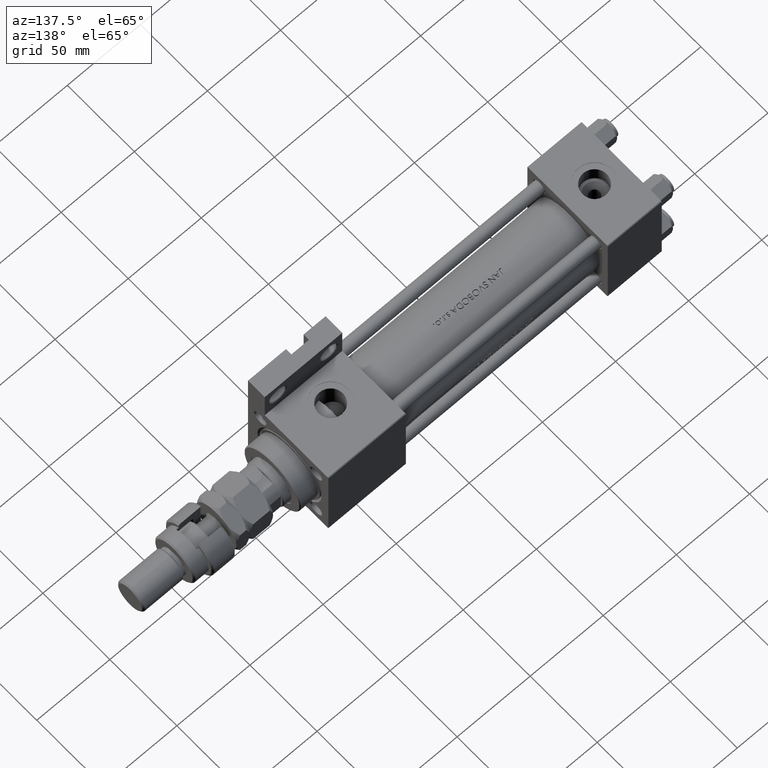
[diagram: clean part render]
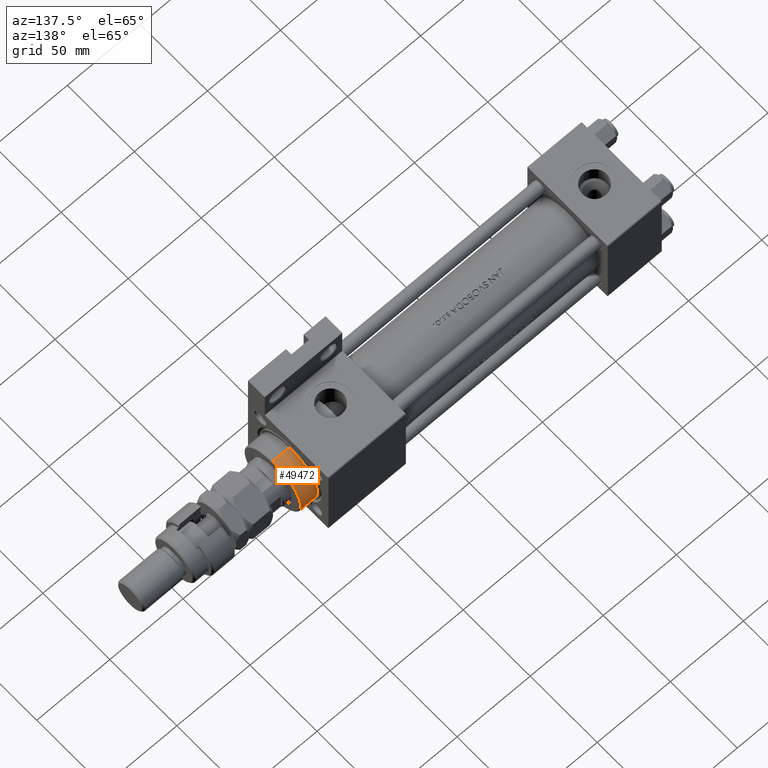
[diagram: same view with one face highlighted and labeled with its STEP entity id]
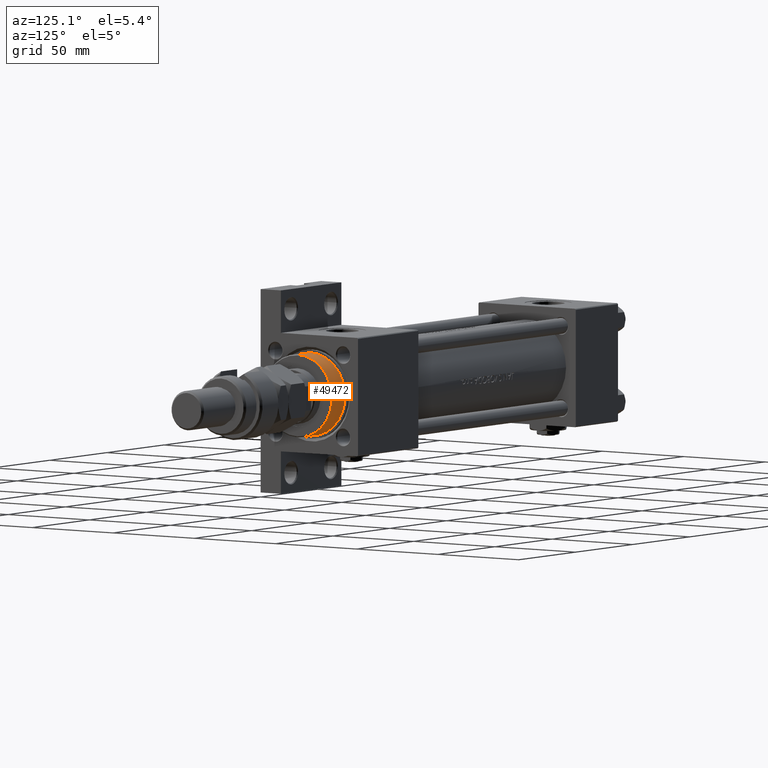
[diagram: same view with one face highlighted and labeled with its STEP entity id]
A machine part, auxiliary view. The second image highlights one B-rep face of the part: STEP entity #49472.
A second angle (auxiliary view) of the same face is appended — the face is thin or edge-on in the first view.
In plain terms, the highlighted cylindrical surface (partial cylindrical patch) has radius 21 mm, axis along (-1, 0, 0).
Its self-contained STEP definition (entity closure, byte-faithful):
#1330 = DIRECTION ( 'NONE',  ( -0.000000000000000000, -0.000000000000000000, -1.000000000000000000 ) ) ;
#1823 = ORIENTED_EDGE ( 'NONE', *, *, #12613, .T. ) ;
#1946 = ORIENTED_EDGE ( 'NONE', *, *, #34541, .T. ) ;
#2370 = VERTEX_POINT ( 'NONE', #36692 ) ;
#2956 = EDGE_CURVE ( 'NONE', #11734, #39181, #16467, .T. ) ;
#5050 = CARTESIAN_POINT ( 'NONE',  ( 21.00000000000000000, 2.571758278209441661E-15, 40.70000000000000284 ) ) ;
#7249 = DIRECTION ( 'NONE',  ( 1.000000000000000000, 0.000000000000000000, 0.000000000000000000 ) ) ;
#9389 = VECTOR ( 'NONE', #1330, 1000.000000000000000 ) ;
#9483 = CARTESIAN_POINT ( 'NONE',  ( -21.00000000000000000, 0.000000000000000000, 40.70000000000000284 ) ) ;
#11734 = VERTEX_POINT ( 'NONE', #15207 ) ;
#11977 = DIRECTION ( 'NONE',  ( -0.000000000000000000, -0.000000000000000000, -1.000000000000000000 ) ) ;
#12613 = EDGE_CURVE ( 'NONE', #49956, #2370, #34438, .T. ) ;
#12764 = CARTESIAN_POINT ( 'NONE',  ( 0.000000000000000000, 0.000000000000000000, 40.70000000000000284 ) ) ;
#15207 = CARTESIAN_POINT ( 'NONE',  ( 21.00000000000000000, 2.571758278209441661E-15, 40.19999999999998863 ) ) ;
#16049 = CYLINDRICAL_SURFACE ( 'NONE', #40047, 21.00000000000000000 ) ;
#16443 = CARTESIAN_POINT ( 'NONE',  ( 0.000000000000000000, 0.000000000000000000, 28.69999999999999929 ) ) ;
#16467 = LINE ( 'NONE', #5050, #19348 ) ;
#17249 = DIRECTION ( 'NONE',  ( -0.000000000000000000, -0.000000000000000000, -1.000000000000000000 ) ) ;
#17827 = CIRCLE ( 'NONE', #23056, 21.00000000000000000 ) ;
#19348 = VECTOR ( 'NONE', #17249, 1000.000000000000000 ) ;
#21171 = DIRECTION ( 'NONE',  ( -1.000000000000000000, 0.000000000000000000, 0.000000000000000000 ) ) ;
#23056 = AXIS2_PLACEMENT_3D ( 'NONE', #27864, #44400, #7249 ) ;
#23805 = DIRECTION ( 'NONE',  ( 1.000000000000000000, 0.000000000000000000, 0.000000000000000000 ) ) ;
#27864 = CARTESIAN_POINT ( 'NONE',  ( 0.000000000000000000, 0.000000000000000000, 40.19999999999998863 ) ) ;
#28813 = ORIENTED_EDGE ( 'NONE', *, *, #32139, .T. ) ;
#32139 = EDGE_CURVE ( 'NONE', #11734, #49956, #17827, .T. ) ;
#34438 = LINE ( 'NONE', #9483, #9389 ) ;
#34541 = EDGE_CURVE ( 'NONE', #2370, #39181, #49965, .T. ) ;
#36692 = CARTESIAN_POINT ( 'NONE',  ( -21.00000000000000000, 0.000000000000000000, 28.69999999999999929 ) ) ;
#36805 = DIRECTION ( 'NONE',  ( 0.000000000000000000, 0.000000000000000000, 1.000000000000000000 ) ) ;
#37997 = ORIENTED_EDGE ( 'NONE', *, *, #2956, .F. ) ;
#38105 = EDGE_LOOP ( 'NONE', ( #37997, #28813, #1823, #1946 ) ) ;
#39181 = VERTEX_POINT ( 'NONE', #45645 ) ;
#40047 = AXIS2_PLACEMENT_3D ( 'NONE', #12764, #11977, #21171 ) ;
#42538 = CARTESIAN_POINT ( 'NONE',  ( -21.00000000000000000, 0.000000000000000000, 40.19999999999998863 ) ) ;
#44400 = DIRECTION ( 'NONE',  ( 0.000000000000000000, 0.000000000000000000, -1.000000000000000000 ) ) ;
#45601 = FACE_OUTER_BOUND ( 'NONE', #38105, .T. ) ;
#45645 = CARTESIAN_POINT ( 'NONE',  ( 21.00000000000000000, 2.571758278209441661E-15, 28.69999999999999929 ) ) ;
#47402 = AXIS2_PLACEMENT_3D ( 'NONE', #16443, #36805, #23805 ) ;
#49472 = ADVANCED_FACE ( 'NONE', ( #45601 ), #16049, .T. ) ;
#49956 = VERTEX_POINT ( 'NONE', #42538 ) ;
#49965 = CIRCLE ( 'NONE', #47402, 21.00000000000000000 ) ;